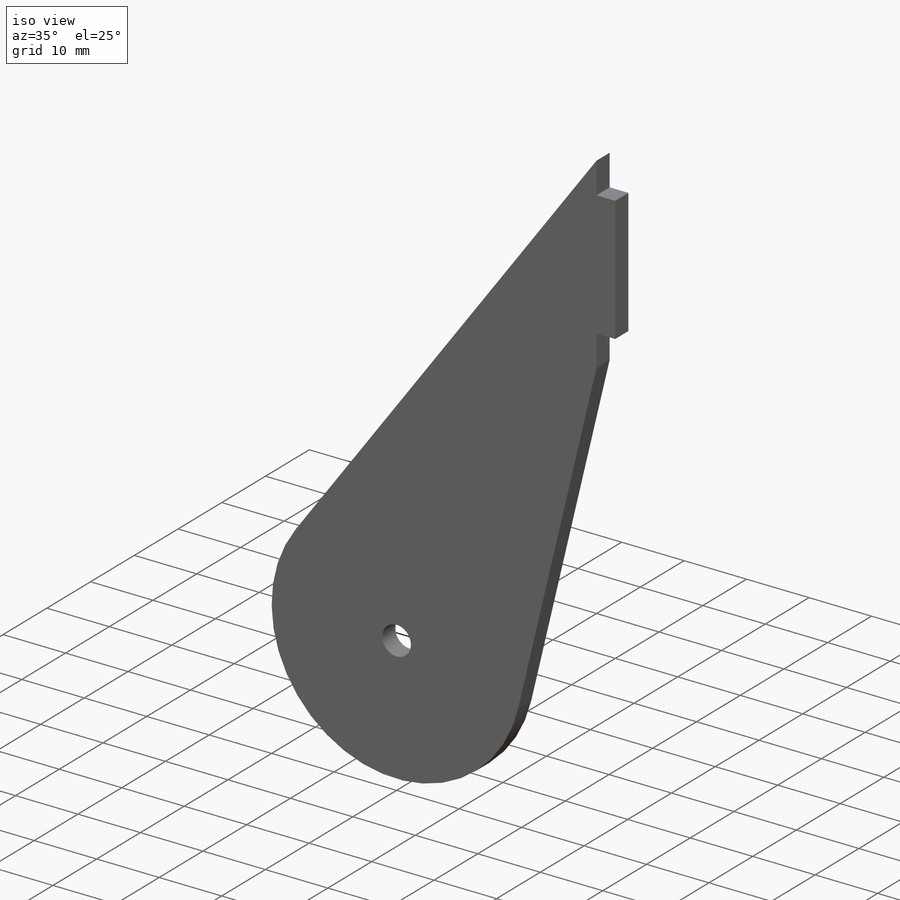
[diagram: iso view]
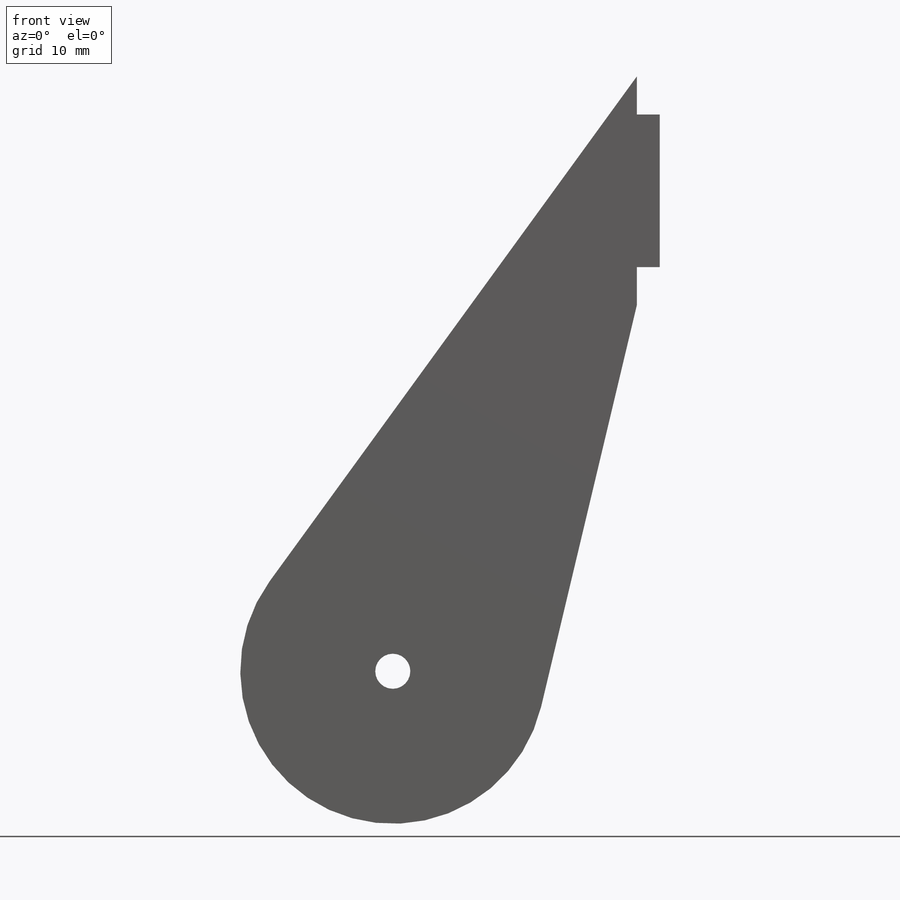
[diagram: front view]
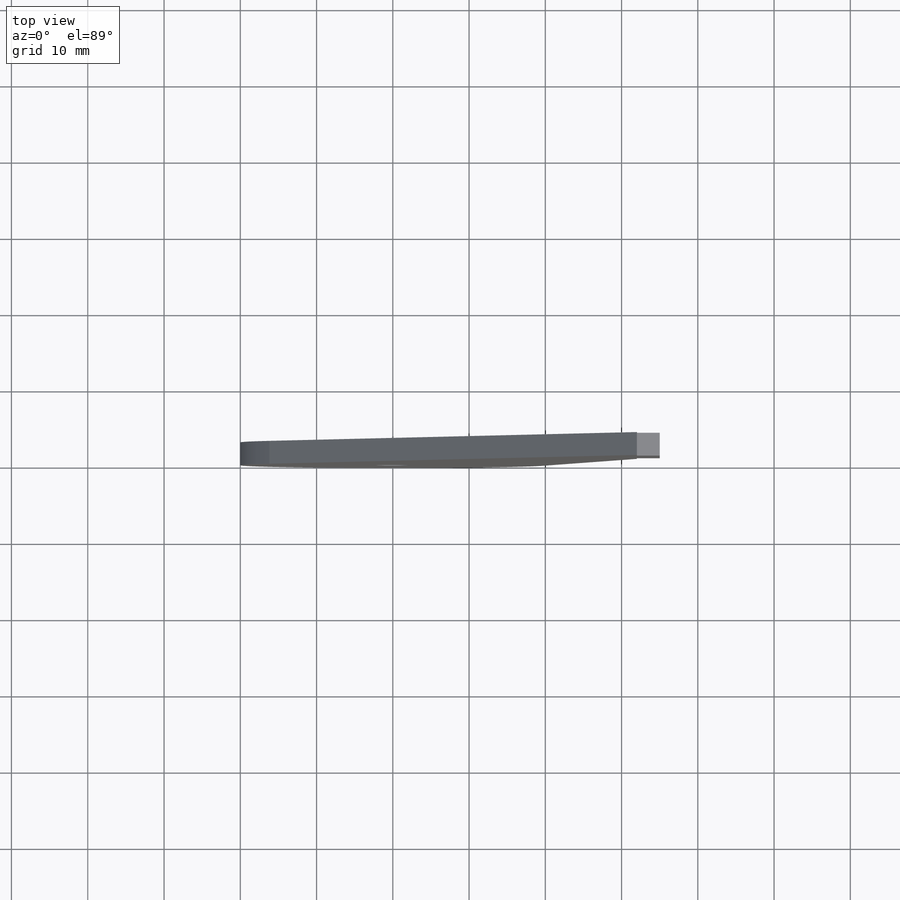
[diagram: top view]
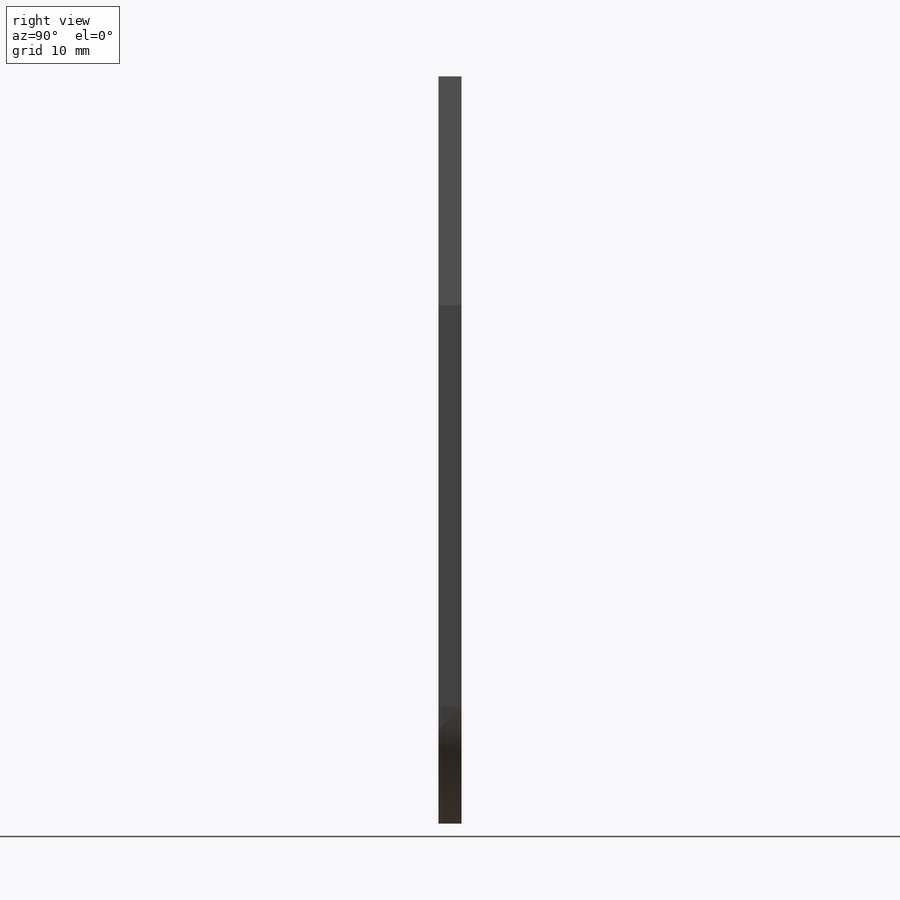
[diagram: right view]
SOLIDWORKS PART (.sldprt)
format: sldprt  version: not decoded by parser v0  size: 133,120 bytes
history: native  units: mm
features: sketch x3, extrude x2, material x1, cut_extrude x1 (+11 scaffold rows collapsed)
feature tree (18):
  scaffold x11  (default folders/planes/origin — collapsed)
  material  "Material <not specified>"
  sketch  "Sketch1"  dims[c1.D1=2.0mm c1.D2=20.0mm c2.D1=4.6mm c2.D2=32.0mm c2.D3=30.0mm c2.D4=48.0mm c3.D3=16.5mm c3.D4=~19.455095mm c3.D5=32.0mm c3.D6=~16.174411mm c3.D7=16.5mm c3.D8=16.5mm c3.D9=16.5mm]
  extrude  "Boss-Extrude1"  Depth=3mm
  sketch  "Sketch2"  dims[D1=4.6mm]
  cut_extrude  "Cut-Extrude1"  Depth=10mm
  sketch  "Sketch4"  dims[c1.D1=~19.684755mm c1.D2=3.0mm c2.D1=20.0mm c2.D2=5.0mm]
  extrude  "Boss-Extrude3"  Depth=3mm
decode coverage: 6 of 6 modeling features carry decoded parameters
note: ~ marks probable driven/reference dimensions
note: suppression state not decoded; provenance and decode notes live in map.json
